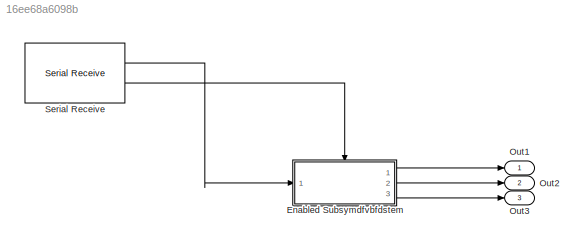
MODEL slx_16ee68a6098b
KIND model
CONFIG AbsTol = auto
CONFIG EnableMultiTasking = off
CONFIG FixedStep = auto
CONFIG MaxStep = auto
CONFIG MinStep = auto
CONFIG RelTol = 1e-3
CONFIG SampleTimeConstraint = Unconstrained
CONFIG Solver = VariableStepAuto
CONFIG SolverName = VariableStepAuto
CONFIG StartTime = 0.0
CONFIG StopTime = inf
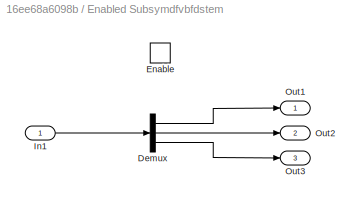
BLOCK [SubSystem] Enabled Subsymdfvbfdstem
  Ports = [1, 3, 1]
  RequestExecContextInheritance = off
  TreatAsAtomicUnit = on
  Variant = off
BLOCK [Demux] Enabled Subsymdfvbfdstem/Demux
  DisplayOption = bar
  Outputs = 3
  Ports = [1, 3]
BLOCK [EnablePort] Enabled Subsymdfvbfdstem/Enable
  Ports = []
BLOCK [Inport] Enabled Subsymdfvbfdstem/In1
  IconDisplay = Port number
BLOCK [Outport] Enabled Subsymdfvbfdstem/Out1
  IconDisplay = Port number
BLOCK [Outport] Enabled Subsymdfvbfdstem/Out2
  IconDisplay = Port number
  Port = 2
BLOCK [Outport] Enabled Subsymdfvbfdstem/Out3
  IconDisplay = Port number
  Port = 3
BLOCK [Outport] Out1
  IconDisplay = Port number
BLOCK [Outport] Out2
  IconDisplay = Port number
  Port = 2
BLOCK [Outport] Out3
  IconDisplay = Port number
  Port = 3
BLOCK [Reference] Serial Receive  REF=frdmkl25zlib/Serial Receive
  Ports = [0, 2]
  SourceBlock = frdmkl25zlib/Serial Receive
  SourceProductBaseCode = EC_FREEDOM_BOARD
  SourceProductName = Simulink Coder Support Package for NXP FRDM-KL25Z Board
  SourceType = Serial Receive
LINE Enabled Subsymdfvbfdstem/Demux:1 -> Enabled Subsymdfvbfdstem/Out1:1
LINE Enabled Subsymdfvbfdstem/Demux:2 -> Enabled Subsymdfvbfdstem/Out2:1
LINE Enabled Subsymdfvbfdstem/Demux:3 -> Enabled Subsymdfvbfdstem/Out3:1
LINE Enabled Subsymdfvbfdstem/In1:1 -> Enabled Subsymdfvbfdstem/Demux:1
LINE Enabled Subsymdfvbfdstem:1 -> Out1:1
LINE Enabled Subsymdfvbfdstem:2 -> Out2:1
LINE Enabled Subsymdfvbfdstem:3 -> Out3:1
LINE Serial Receive:1 -> Enabled Subsymdfvbfdstem:1
LINE Serial Receive:2 -> Enabled Subsymdfvbfdstem:enable
